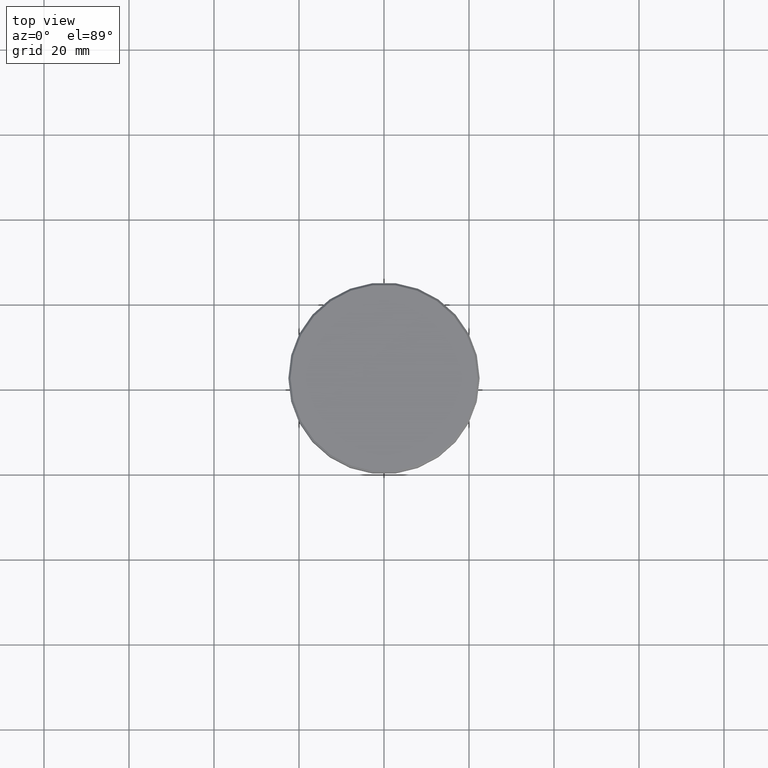
[diagram: clean part render]
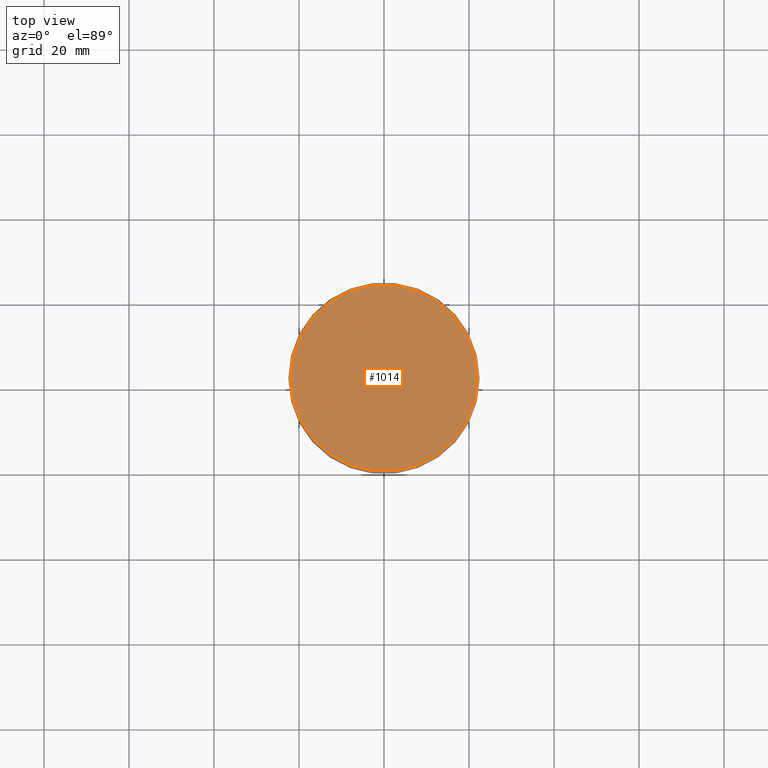
[diagram: same view with one face highlighted and labeled with its STEP entity id]
A machine part, top view. The second image highlights one B-rep face of the part: STEP entity #1014.
In plain terms, the highlighted planar face has unit normal (0, -0, 1).
Its self-contained STEP definition (entity closure, byte-faithful):
#23 = CIRCLE ( 'NONE', #647, 22.00000000000000711 ) ;
#57 = DIRECTION ( 'NONE',  ( 1.000000000000000000, 0.000000000000000000, 0.000000000000000000 ) ) ;
#75 = DIRECTION ( 'NONE',  ( 1.000000000000000000, 0.000000000000000000, 0.000000000000000000 ) ) ;
#79 = CARTESIAN_POINT ( 'NONE',  ( 0.000000000000000000, 0.000000000000000000, 0.000000000000000000 ) ) ;
#175 = VERTEX_POINT ( 'NONE', #997 ) ;
#285 = EDGE_LOOP ( 'NONE', ( #987, #1144 ) ) ;
#371 = CARTESIAN_POINT ( 'NONE',  ( 0.000000000000000000, 0.000000000000000000, 0.000000000000000000 ) ) ;
#473 = DIRECTION ( 'NONE',  ( -0.000000000000000000, -0.000000000000000000, 1.000000000000000000 ) ) ;
#482 = CARTESIAN_POINT ( 'NONE',  ( -22.00000000000000711, 0.000000000000000000, 0.000000000000000000 ) ) ;
#508 = PLANE ( 'NONE',  #935 ) ;
#528 = CARTESIAN_POINT ( 'NONE',  ( 0.000000000000000000, 0.000000000000000000, 0.000000000000000000 ) ) ;
#647 = AXIS2_PLACEMENT_3D ( 'NONE', #79, #1162, #75 ) ;
#845 = DIRECTION ( 'NONE',  ( 1.000000000000000000, 0.000000000000000000, 0.000000000000000000 ) ) ;
#895 = DIRECTION ( 'NONE',  ( 0.000000000000000000, -0.000000000000000000, 1.000000000000000000 ) ) ;
#926 = EDGE_CURVE ( 'NONE', #175, #1161, #1154, .T. ) ;
#935 = AXIS2_PLACEMENT_3D ( 'NONE', #528, #895, #57 ) ;
#981 = FACE_OUTER_BOUND ( 'NONE', #285, .T. ) ;
#987 = ORIENTED_EDGE ( 'NONE', *, *, #1120, .T. ) ;
#997 = CARTESIAN_POINT ( 'NONE',  ( 22.00000000000000711, 2.724839128102860991E-15, 0.000000000000000000 ) ) ;
#1014 = ADVANCED_FACE ( 'NONE', ( #981 ), #508, .T. ) ;
#1120 = EDGE_CURVE ( 'NONE', #1161, #175, #23, .T. ) ;
#1139 = AXIS2_PLACEMENT_3D ( 'NONE', #371, #473, #845 ) ;
#1144 = ORIENTED_EDGE ( 'NONE', *, *, #926, .T. ) ;
#1154 = CIRCLE ( 'NONE', #1139, 22.00000000000000711 ) ;
#1161 = VERTEX_POINT ( 'NONE', #482 ) ;
#1162 = DIRECTION ( 'NONE',  ( -0.000000000000000000, -0.000000000000000000, 1.000000000000000000 ) ) ;